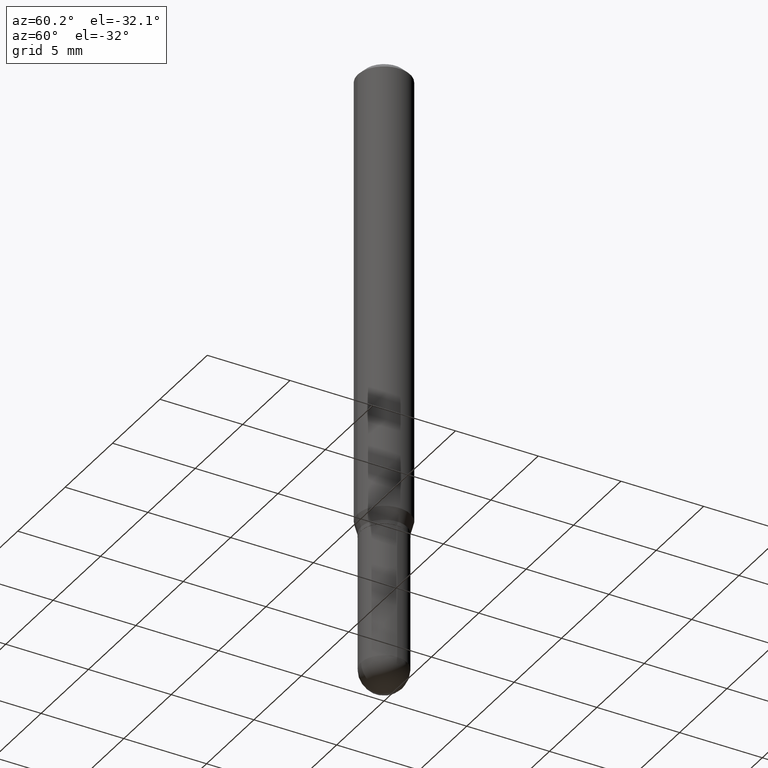
[diagram: clean part render]
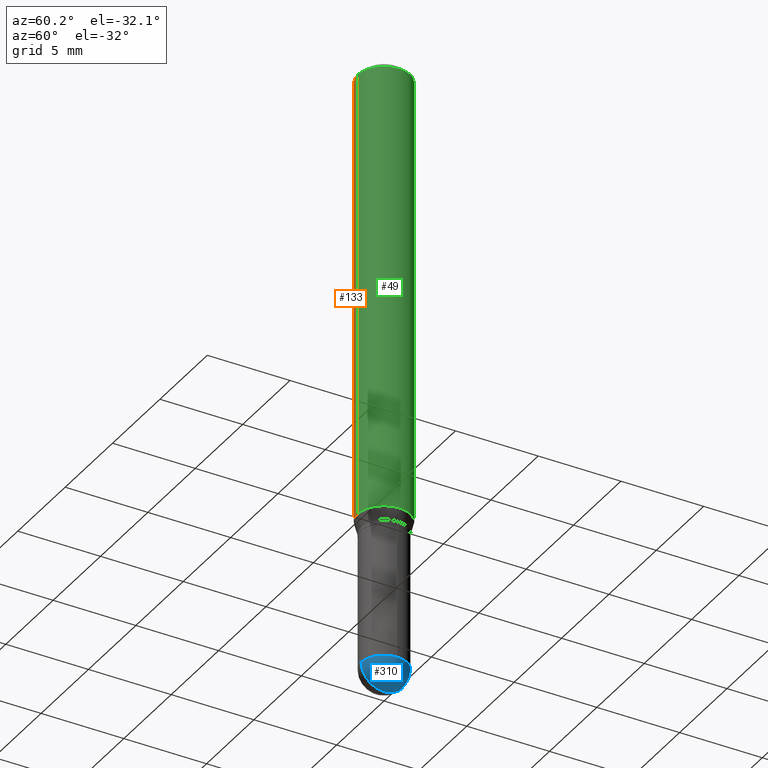
[diagram: same view with three faces highlighted in distinct colors, each labeled with its STEP entity id]
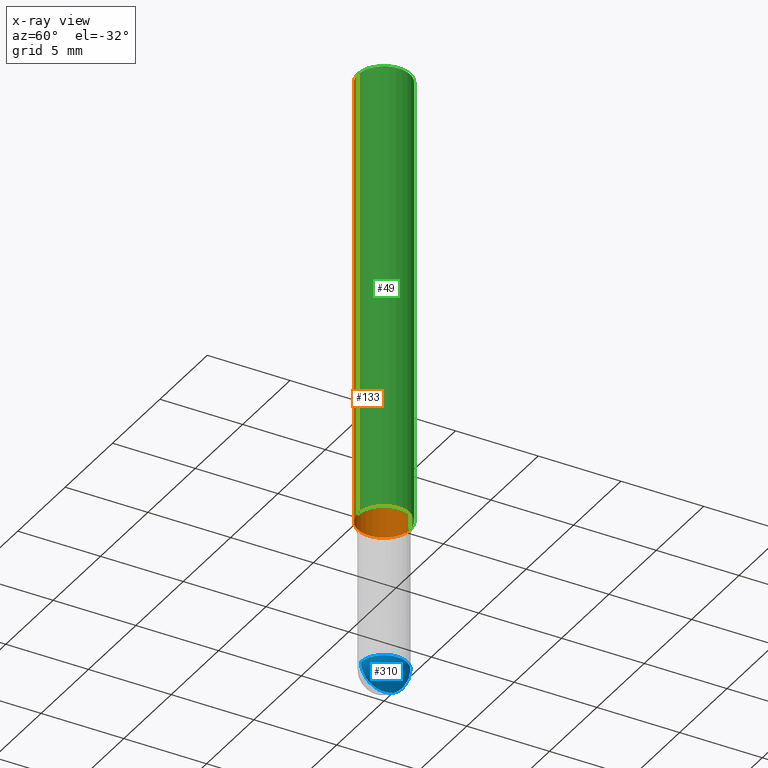
[diagram: x-ray of the same camera — body ghosted, the three highlighted faces saturated]
A machine part, auxiliary view with three faces highlighted in distinct colors.
The next image is the same camera in x-ray (body ghosted, the three faces saturated) — at least one of them is partly hidden behind the body in this view.
Their STEP definitions:

[orange] entity #133 — the highlighted cylindrical surface (edge-blend (fillet) strip) has radius 1.5875 mm, axis along (-0, 0, 1).
#6 = EDGE_CURVE ( 'NONE', #186, #304, #119, .T. ) ;
#9 = VERTEX_POINT ( 'NONE', #47 ) ;
#11 = FACE_OUTER_BOUND ( 'NONE', #418, .T. ) ;
#19 = DIRECTION ( 'NONE',  ( -6.982962677686265922E-15, -1.000000000000000000, 3.491940666139061088E-15 ) ) ;
#23 = ORIENTED_EDGE ( 'NONE', *, *, #423, .T. ) ;
#47 = CARTESIAN_POINT ( 'NONE',  ( -4.364351673553652426E-16, -0.06250000000000380251, -1.085890003700963558 ) ) ;
#83 = ORIENTED_EDGE ( 'NONE', *, *, #284, .F. ) ;
#111 = LINE ( 'NONE', #393, #203 ) ;
#119 = LINE ( 'NONE', #165, #221 ) ;
#122 = AXIS2_PLACEMENT_3D ( 'NONE', #484, #411, #19 ) ;
#125 = EDGE_CURVE ( 'NONE', #186, #9, #492, .T. ) ;
#127 = CYLINDRICAL_SURFACE ( 'NONE', #122, 0.06250000000000000000 ) ;
#133 = ADVANCED_FACE ( 'NONE', ( #11 ), #127, .T. ) ;
#151 = CARTESIAN_POINT ( 'NONE',  ( 4.440892098500893388E-16, 0.06249999999999995143, -0.01500000000000022669 ) ) ;
#165 = CARTESIAN_POINT ( 'NONE',  ( 4.440892098500625669E-16, 0.06250000000000000000, -2.182462916336913180E-16 ) ) ;
#168 = DIRECTION ( 'NONE',  ( -2.445148059648714686E-29, 3.491940666139060694E-15, 1.000000000000000000 ) ) ;
#186 = VERTEX_POINT ( 'NONE', #369 ) ;
#197 = ORIENTED_EDGE ( 'NONE', *, *, #6, .F. ) ;
#203 = VECTOR ( 'NONE', #168, 39.37007874015748143 ) ;
#221 = VECTOR ( 'NONE', #394, 39.37007874015748143 ) ;
#267 = DIRECTION ( 'NONE',  ( -2.445148059648714686E-29, 3.491940666139061088E-15, 1.000000000000000000 ) ) ;
#284 = EDGE_CURVE ( 'NONE', #304, #360, #294, .T. ) ;
#294 = CIRCLE ( 'NONE', #354, 0.06250000000000000000 ) ;
#304 = VERTEX_POINT ( 'NONE', #151 ) ;
#305 = DIRECTION ( 'NONE',  ( -6.982962677686265922E-15, -1.000000000000000000, 3.483106191921935554E-15 ) ) ;
#354 = AXIS2_PLACEMENT_3D ( 'NONE', #507, #267, #305 ) ;
#360 = VERTEX_POINT ( 'NONE', #501 ) ;
#364 = DIRECTION ( 'NONE',  ( -6.982962677686265922E-15, -1.000000000000000000, 4.370956789862821150E-15 ) ) ;
#365 = CARTESIAN_POINT ( 'NONE',  ( 2.655161835541346993E-29, -3.791863462877290691E-15, -1.085890003700963780 ) ) ;
#366 = AXIS2_PLACEMENT_3D ( 'NONE', #365, #368, #364 ) ;
#368 = DIRECTION ( 'NONE',  ( -2.445148059648714686E-29, 3.491940666139061088E-15, 1.000000000000000000 ) ) ;
#369 = CARTESIAN_POINT ( 'NONE',  ( 4.440892098500889444E-16, 0.06249999999999619055, -1.085890003700964002 ) ) ;
#370 = ORIENTED_EDGE ( 'NONE', *, *, #125, .T. ) ;
#393 = CARTESIAN_POINT ( 'NONE',  ( -4.364351673553916201E-16, -0.06250000000000000000, 2.182462916336913180E-16 ) ) ;
#394 = DIRECTION ( 'NONE',  ( -2.445148059648714686E-29, 3.491940666139060694E-15, 1.000000000000000000 ) ) ;
#411 = DIRECTION ( 'NONE',  ( -2.445148059648714686E-29, 3.491940666139061088E-15, 1.000000000000000000 ) ) ;
#418 = EDGE_LOOP ( 'NONE', ( #197, #370, #23, #83 ) ) ;
#423 = EDGE_CURVE ( 'NONE', #9, #360, #111, .T. ) ;
#484 = CARTESIAN_POINT ( 'NONE',  ( 0.000000000000000000, 0.000000000000000000, 0.000000000000000000 ) ) ;
#492 = CIRCLE ( 'NONE', #366, 0.06250000000000000000 ) ;
#501 = CARTESIAN_POINT ( 'NONE',  ( -4.364351673553912750E-16, -0.06250000000000005551, -0.01499999999999979128 ) ) ;
#507 = CARTESIAN_POINT ( 'NONE',  ( 3.667722089473074341E-31, -5.237910999208594418E-17, -0.01500000000000000812 ) ) ;

[blue] entity #310 — the highlighted spherical surface has radius 1.3894 mm.
#15 = VERTEX_POINT ( 'NONE', #42 ) ;
#17 = EDGE_LOOP ( 'NONE', ( #63, #226, #39, #59 ) ) ;
#25 = DIRECTION ( 'NONE',  ( -2.445468806185136597E-29, 3.491481338843145583E-15, 1.000000000000000000 ) ) ;
#30 = DIRECTION ( 'NONE',  ( 6.982962677686265922E-15, 1.000000000000000000, -4.994237648380731355E-15 ) ) ;
#39 = ORIENTED_EDGE ( 'NONE', *, *, #295, .F. ) ;
#42 = CARTESIAN_POINT ( 'NONE',  ( -3.886668764607396383E-16, -0.05470000000000508483, -1.445299999999999807 ) ) ;
#50 = DIRECTION ( 'NONE',  ( 1.000000000000000000, -6.982962677686259611E-15, 0.000000000000000000 ) ) ;
#59 = ORIENTED_EDGE ( 'NONE', *, *, #166, .F. ) ;
#60 = CARTESIAN_POINT ( 'NONE',  ( 3.529758305977566399E-29, -5.052936797021334001E-15, -1.445300000000000029 ) ) ;
#62 = AXIS2_PLACEMENT_3D ( 'NONE', #460, #188, #416 ) ;
#63 = ORIENTED_EDGE ( 'NONE', *, *, #306, .F. ) ;
#94 = AXIS2_PLACEMENT_3D ( 'NONE', #222, #374, #30 ) ;
#102 = CARTESIAN_POINT ( 'NONE',  ( 3.534436065579377749E-29, -5.046237979029997798E-15, -1.445300000000000029 ) ) ;
#108 = CARTESIAN_POINT ( 'NONE',  ( 3.665864329476799220E-29, -5.240571417260386673E-15, -1.500000000000000222 ) ) ;
#113 = CARTESIAN_POINT ( 'NONE',  ( 3.819680584694743340E-16, 0.05469999999999498180, -1.445300000000000251 ) ) ;
#146 = AXIS2_PLACEMENT_3D ( 'NONE', #102, #25, #469 ) ;
#166 = EDGE_CURVE ( 'NONE', #15, #292, #271, .T. ) ;
#188 = DIRECTION ( 'NONE',  ( -1.000000000000000000, 7.105427357601001070E-15, -4.926315508542082329E-29 ) ) ;
#222 = CARTESIAN_POINT ( 'NONE',  ( 3.529758305977566399E-29, -5.052936797021334001E-15, -1.445300000000000029 ) ) ;
#225 = CARTESIAN_POINT ( 'NONE',  ( 0.05470000000000000556, -4.869045301083706902E-15, -1.445300000000000029 ) ) ;
#226 = ORIENTED_EDGE ( 'NONE', *, *, #293, .T. ) ;
#262 = DIRECTION ( 'NONE',  ( 1.000000000000000000, -6.982962677686265922E-15, 4.883557194083112340E-29 ) ) ;
#271 = CIRCLE ( 'NONE', #503, 0.05470000000000000556 ) ;
#292 = VERTEX_POINT ( 'NONE', #225 ) ;
#293 = EDGE_CURVE ( 'NONE', #300, #453, #398, .T. ) ;
#295 = EDGE_CURVE ( 'NONE', #292, #453, #485, .T. ) ;
#300 = VERTEX_POINT ( 'NONE', #108 ) ;
#306 = EDGE_CURVE ( 'NONE', #300, #15, #340, .T. ) ;
#310 = ADVANCED_FACE ( 'NONE', ( #347 ), #465, .T. ) ;
#340 = CIRCLE ( 'NONE', #62, 0.05470000000000006107 ) ;
#347 = FACE_OUTER_BOUND ( 'NONE', #17, .T. ) ;
#374 = DIRECTION ( 'NONE',  ( -1.000000000000000000, 6.982962677686265922E-15, -4.883557194083112901E-29 ) ) ;
#398 = CIRCLE ( 'NONE', #445, 0.05470000000000006107 ) ;
#401 = CARTESIAN_POINT ( 'NONE',  ( 3.534436065579377749E-29, -5.046237979029997798E-15, -1.445300000000000029 ) ) ;
#416 = DIRECTION ( 'NONE',  ( -7.105427357601001070E-15, -1.000000000000000000, 0.000000000000000000 ) ) ;
#422 = DIRECTION ( 'NONE',  ( 6.982962677686265133E-15, 1.000000000000000000, 0.000000000000000000 ) ) ;
#445 = AXIS2_PLACEMENT_3D ( 'NONE', #60, #262, #422 ) ;
#447 = DIRECTION ( 'NONE',  ( -2.445468806185136597E-29, 3.491481338843145583E-15, 1.000000000000000000 ) ) ;
#453 = VERTEX_POINT ( 'NONE', #113 ) ;
#460 = CARTESIAN_POINT ( 'NONE',  ( 3.529758305977566399E-29, -5.052936797021334001E-15, -1.445300000000000029 ) ) ;
#465 = SPHERICAL_SURFACE ( 'NONE', #94, 0.05470000000000006107 ) ;
#469 = DIRECTION ( 'NONE',  ( 1.000000000000000000, -6.982962677686259611E-15, 0.000000000000000000 ) ) ;
#485 = CIRCLE ( 'NONE', #146, 0.05470000000000000556 ) ;
#503 = AXIS2_PLACEMENT_3D ( 'NONE', #401, #447, #50 ) ;

[green] entity #49 — the highlighted cylindrical surface (edge-blend (fillet) strip) has radius 1.5875 mm, axis along (-0, 0, 1).
#6 = EDGE_CURVE ( 'NONE', #186, #304, #119, .T. ) ;
#9 = VERTEX_POINT ( 'NONE', #47 ) ;
#47 = CARTESIAN_POINT ( 'NONE',  ( -4.364351673553652426E-16, -0.06250000000000380251, -1.085890003700963558 ) ) ;
#49 = ADVANCED_FACE ( 'NONE', ( #510 ), #274, .T. ) ;
#75 = DIRECTION ( 'NONE',  ( -6.982962677686265922E-15, -1.000000000000000000, 3.491940666139061088E-15 ) ) ;
#107 = DIRECTION ( 'NONE',  ( -2.445148059648714686E-29, 3.491940666139061088E-15, 1.000000000000000000 ) ) ;
#111 = LINE ( 'NONE', #393, #203 ) ;
#114 = EDGE_LOOP ( 'NONE', ( #177, #317, #478, #337 ) ) ;
#119 = LINE ( 'NONE', #165, #221 ) ;
#144 = CARTESIAN_POINT ( 'NONE',  ( 3.667722089473074341E-31, -5.237910999208594418E-17, -0.01500000000000000812 ) ) ;
#151 = CARTESIAN_POINT ( 'NONE',  ( 4.440892098500893388E-16, 0.06249999999999995143, -0.01500000000000022669 ) ) ;
#159 = EDGE_CURVE ( 'NONE', #9, #186, #327, .T. ) ;
#165 = CARTESIAN_POINT ( 'NONE',  ( 4.440892098500625669E-16, 0.06250000000000000000, -2.182462916336913180E-16 ) ) ;
#168 = DIRECTION ( 'NONE',  ( -2.445148059648714686E-29, 3.491940666139060694E-15, 1.000000000000000000 ) ) ;
#177 = ORIENTED_EDGE ( 'NONE', *, *, #159, .T. ) ;
#178 = DIRECTION ( 'NONE',  ( -6.982962677686265922E-15, -1.000000000000000000, 4.370956789862821150E-15 ) ) ;
#186 = VERTEX_POINT ( 'NONE', #369 ) ;
#189 = DIRECTION ( 'NONE',  ( -6.982962677686265922E-15, -1.000000000000000000, 3.483106191921935554E-15 ) ) ;
#203 = VECTOR ( 'NONE', #168, 39.37007874015748143 ) ;
#209 = DIRECTION ( 'NONE',  ( -2.445148059648714686E-29, 3.491940666139061088E-15, 1.000000000000000000 ) ) ;
#221 = VECTOR ( 'NONE', #394, 39.37007874015748143 ) ;
#253 = AXIS2_PLACEMENT_3D ( 'NONE', #287, #209, #178 ) ;
#274 = CYLINDRICAL_SURFACE ( 'NONE', #339, 0.06250000000000000000 ) ;
#287 = CARTESIAN_POINT ( 'NONE',  ( 2.655161835541346993E-29, -3.791863462877290691E-15, -1.085890003700963780 ) ) ;
#304 = VERTEX_POINT ( 'NONE', #151 ) ;
#317 = ORIENTED_EDGE ( 'NONE', *, *, #6, .T. ) ;
#327 = CIRCLE ( 'NONE', #253, 0.06250000000000000000 ) ;
#337 = ORIENTED_EDGE ( 'NONE', *, *, #423, .F. ) ;
#339 = AXIS2_PLACEMENT_3D ( 'NONE', #431, #473, #75 ) ;
#360 = VERTEX_POINT ( 'NONE', #501 ) ;
#369 = CARTESIAN_POINT ( 'NONE',  ( 4.440892098500889444E-16, 0.06249999999999619055, -1.085890003700964002 ) ) ;
#376 = EDGE_CURVE ( 'NONE', #360, #304, #477, .T. ) ;
#393 = CARTESIAN_POINT ( 'NONE',  ( -4.364351673553916201E-16, -0.06250000000000000000, 2.182462916336913180E-16 ) ) ;
#394 = DIRECTION ( 'NONE',  ( -2.445148059648714686E-29, 3.491940666139060694E-15, 1.000000000000000000 ) ) ;
#423 = EDGE_CURVE ( 'NONE', #9, #360, #111, .T. ) ;
#431 = CARTESIAN_POINT ( 'NONE',  ( 0.000000000000000000, 0.000000000000000000, 0.000000000000000000 ) ) ;
#468 = AXIS2_PLACEMENT_3D ( 'NONE', #144, #107, #189 ) ;
#473 = DIRECTION ( 'NONE',  ( -2.445148059648714686E-29, 3.491940666139061088E-15, 1.000000000000000000 ) ) ;
#477 = CIRCLE ( 'NONE', #468, 0.06250000000000000000 ) ;
#478 = ORIENTED_EDGE ( 'NONE', *, *, #376, .F. ) ;
#501 = CARTESIAN_POINT ( 'NONE',  ( -4.364351673553912750E-16, -0.06250000000000005551, -0.01499999999999979128 ) ) ;
#510 = FACE_OUTER_BOUND ( 'NONE', #114, .T. ) ;